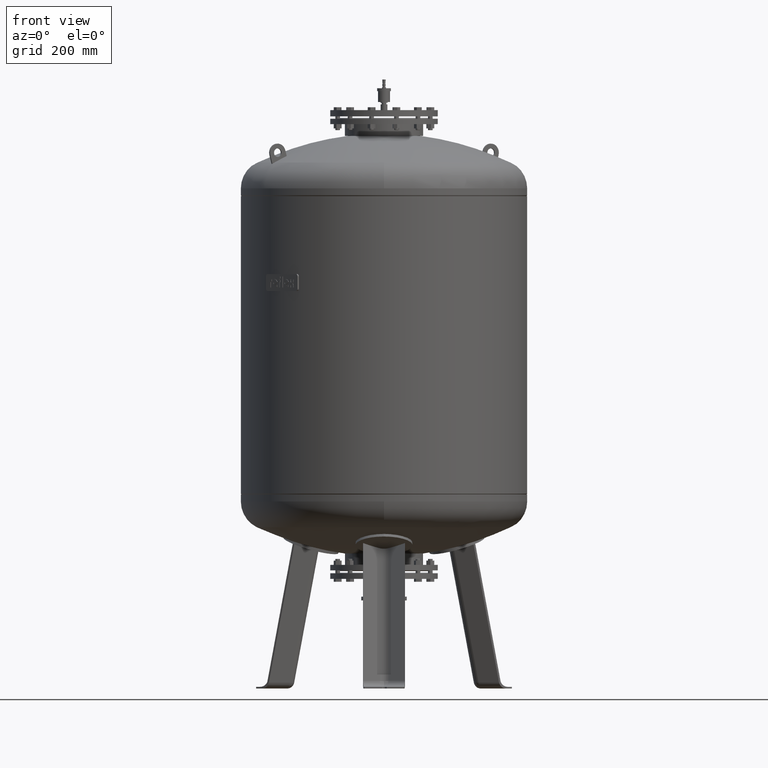
[diagram: clean part render]
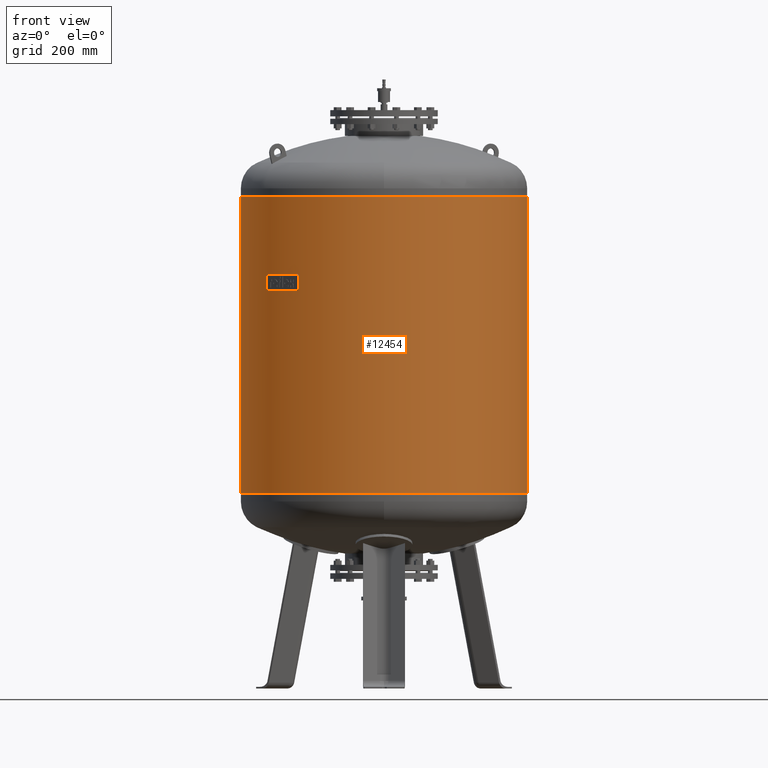
[diagram: same view with one face highlighted and labeled with its STEP entity id]
A machine part, front view. The second image highlights one B-rep face of the part: STEP entity #12454.
In plain terms, the highlighted cylindrical surface (partial cylindrical patch) has radius 500 mm, axis along (0, 0, 1).
Its self-contained STEP definition (entity closure, byte-faithful):
#12413=CARTESIAN_POINT('',(8.297411E-015,0.0,1452.250000000000000));
#12414=DIRECTION('',(3.104738E-017,0.0,1.0));
#12415=DIRECTION('',(1.0,0.0,0.0));
#12416=AXIS2_PLACEMENT_3D('',#12413,#12414,#12415);
#12417=CYLINDRICAL_SURFACE('',#12416,500.000000000000570);
#12418=CARTESIAN_POINT('',(500.000000000000570,0.0,1719.500000000000000));
#12419=VERTEX_POINT('',#12418);
#12420=CARTESIAN_POINT('',(499.999999999999890,0.0,680.500000000000000));
#12421=VERTEX_POINT('',#12420);
#12422=CARTESIAN_POINT('',(500.000000000000570,0.0,1719.500000000000000));
#12423=DIRECTION('',(0.0,0.0,-1.0));
#12424=VECTOR('',#12423,1039.0);
#12425=LINE('',#12422,#12424);
#12426=EDGE_CURVE('',#12419,#12421,#12425,.T.);
#12427=ORIENTED_EDGE('',*,*,#12426,.F.);
#12428=CARTESIAN_POINT('',(-500.000000000000570,-6.123032E-014,1719.500000000000000));
#12429=VERTEX_POINT('',#12428);
#12430=CARTESIAN_POINT('',(1.659482E-014,0.0,1719.500000000000000));
#12431=DIRECTION('',(0.0,0.0,1.0));
#12432=DIRECTION('',(1.0,0.0,0.0));
#12433=AXIS2_PLACEMENT_3D('',#12430,#12431,#12432);
#12434=CIRCLE('',#12433,500.000000000000570);
#12435=EDGE_CURVE('',#12429,#12419,#12434,.T.);
#12436=ORIENTED_EDGE('',*,*,#12435,.F.);
#12437=CARTESIAN_POINT('',(-499.999999999999890,-6.123032E-014,680.500000000000000));
#12438=VERTEX_POINT('',#12437);
#12439=CARTESIAN_POINT('',(-500.000000000000570,-6.123032E-014,1719.500000000000000));
#12440=DIRECTION('',(0.0,0.0,-1.0));
#12441=VECTOR('',#12440,1039.0);
#12442=LINE('',#12439,#12441);
#12443=EDGE_CURVE('',#12429,#12438,#12442,.T.);
#12444=ORIENTED_EDGE('',*,*,#12443,.T.);
#12445=CARTESIAN_POINT('',(-1.659482E-014,0.0,680.500000000000000));
#12446=DIRECTION('',(0.0,0.0,1.0));
#12447=DIRECTION('',(1.0,0.0,0.0));
#12448=AXIS2_PLACEMENT_3D('',#12445,#12446,#12447);
#12449=CIRCLE('',#12448,499.999999999999890);
#12450=EDGE_CURVE('',#12438,#12421,#12449,.T.);
#12451=ORIENTED_EDGE('',*,*,#12450,.T.);
#12452=EDGE_LOOP('',(#12427,#12436,#12444,#12451));
#12453=FACE_OUTER_BOUND('',#12452,.T.);
#12454=ADVANCED_FACE('',(#12453),#12417,.T.);